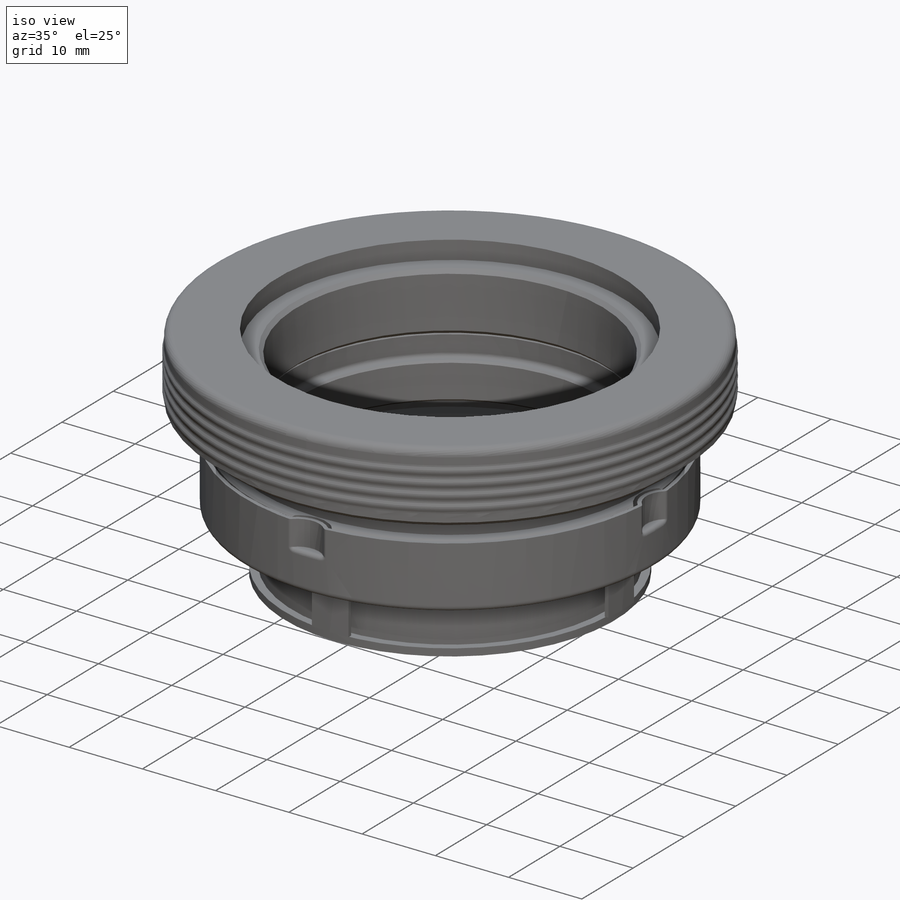
[diagram: iso view]
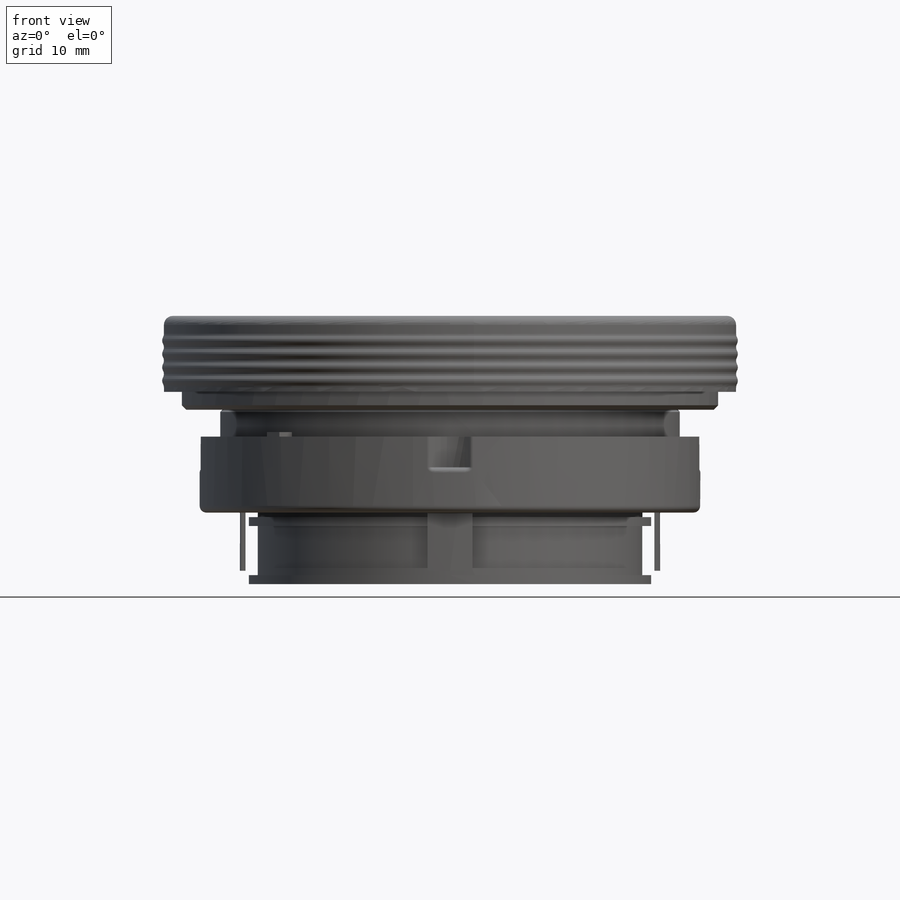
[diagram: front view]
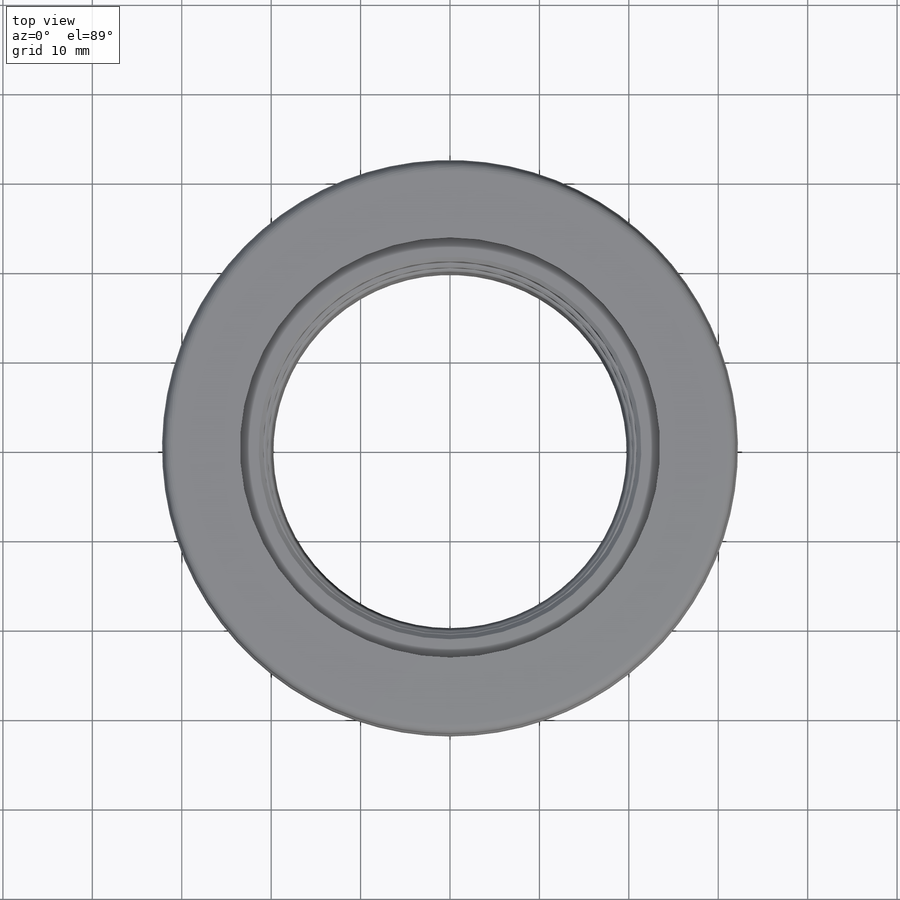
[diagram: top view]
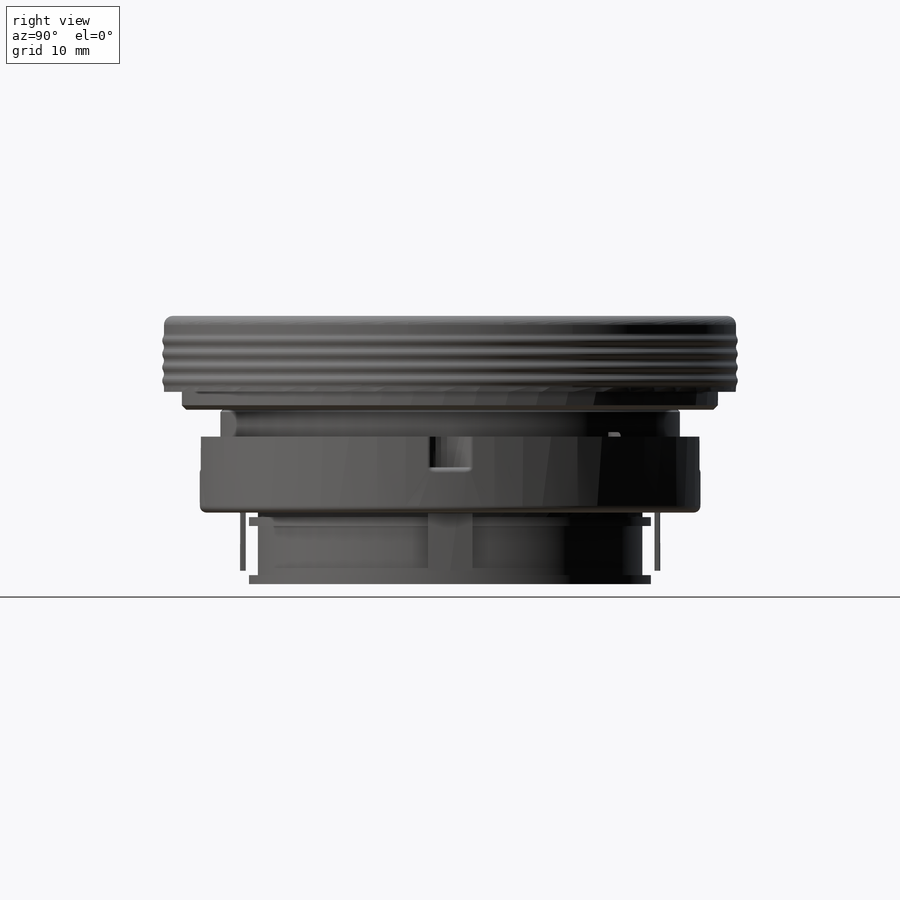
[diagram: right view]
SOLIDWORKS PART (.sldprt)
format: sldprt  version: not decoded by parser v0  size: 1,431,552 bytes
history: native  units: mm
features: sketch x20, revolve x6, cut_extrude x4, extrude x4, sweep x3, material x1, fillet x1, chamfer x1 (+12 scaffold rows collapsed)
feature tree (52):
  scaffold x12  (default folders/planes/origin — collapsed)
  material  "Material <not specified>"
  sketch  "Sketch1"  dims[c1.D2=1.0mm c1.D3=0.75mm c1.D4=0.5mm c1.D6=0.5mm c1.D1=64.0mm c1.D5=8.5mm c2.D6=64.4mm c2.D7=60.0mm c2.D4=2.5mm c2.D8=47.0mm c2.D9=0.5mm]
  revolve  "Revolve1"  Angle=360deg
  sketch  "Sketch2"  dims[c1.D1=8.0mm c1.D2=13.9mm c2.D2=41.8mm]
  revolve  "Revolve2"  Angle=360deg
  sketch  "Sketch3"  dims[c1.D7=0.5mm c1.D1=16.7mm c1.D2=18.65mm c1.D3=8.0mm c1.D4=3.0mm c1.D5=14.2mm c1.D6=13.0mm c2.D2=40.8mm c2.D5=43.0mm c2.D6=51.4mm c2.D8=54.2mm c2.D4=3.0mm]
  revolve  "Revolve3"  Angle=360deg
  sketch  "Sketch4"  dims[c1.D2=~2.940037mm c1.D3=~3.96125mm c1.D1=5.5mm c2.D2=51.7mm c2.D3=51.7mm c3.D2=4.0]
  cut_extrude  "Cut-Extrude1"  [1 undecoded]
  sketch  "Sketch5"  dims[c1.D1=1.0mm c1.D4=~10.15606mm c1.D5=0.5mm c1.D3=38.5mm c2.D4=7.5mm c2.D5=13.5mm c2.D3=38.5mm c2.D1=25.0mm c2.D2=11.5mm c3.D3=1.5mm c3.D4=39.5mm c3.D5=10.0mm c3.D6=5.0mm c3.D7=~5.534851mm c4.D7=80.0deg c4.D8=10.0mm c4.D9=46.5mm c4.D10=53.5mm c4.D11=~0.513672mm c5.D11=43.0mm c5.D12=42.5mm c5.D14=29.5mm c5.D15=6.5mm c5.D16=1.0mm c5.D17=45.0mm c6.D14=5.5mm c6.D15=3.0mm c6.D18=48.5mm c6.D19=2.5mm c7.D19=15.0deg c8.D19=40.0mm c8.D2=0.5mm]
  revolve  "Revolve4"  Angle=360deg
  sketch  "Sketch6"  dims[D1=0.75mm D3=8.5mm D4=15.0mm D5=56.0mm D6=47.0mm D2=0.5mm]
  revolve  "Revolve5"  Angle=360deg
  sketch  "Sketch7"  dims[c1.D1=32.4mm c1.D3=30.0mm c1.D2=5.0mm c1.D4=2.5mm c2.D3=0.5mm c2.D5=4.0]
  cut_extrude  "Cut-Extrude2"  [1 undecoded]
  sketch  "Sketch9"  dims[D1=3.0mm D2=4.0]
  cut_extrude  "Cut-Extrude3"  Depth=4mm
  sketch  "Sketch11"  dims[D1=0.5mm D2=4.0]
  extrude  "Boss-Extrude1"  [1 undecoded]
  sketch  "Sketch12"  dims[D1=0.0mm D2=4.0]
  extrude  "Boss-Extrude2"  Depth=0.5mm
  sketch  "Sketch13"  dims[c1.D1=18.0mm c1.D2=2.0mm c2.D1=2.0mm c2.D2=2.0mm c2.D3=2.0mm c3.D3=45.0deg c3.D1=2.0mm c3.D4=2.0]
  extrude  "Boss-Extrude4"  Depth=0.5mm
  fillet  "Fillet3"  Radius=0.5mm
  sketch  "Sketch14"  dims[c1.D1=33.0mm c1.D2=43.4mm c2.D1=47.5mm c2.D3=6.5mm c2.D4=45.2mm c2.D5=4.0]
  extrude  "Boss-Extrude5"  Depth=5.5mm
  chamfer  "Chamfer1"  Distance=0.25mm Angle=45deg
  sketch  "Sketch15"  dims[c1.D1=3.2mm c1.D2=2.0mm c1.D3=2.0mm c2.D2=2.5mm c2.D3=16.5mm]
  sketch  "Sketch16"  dims[D1=0.5mm]
  sweep  "Sweep1"
  sketch  "Sketch17"  dims[D1=~18.883689mm D2=2.5mm]
  sweep  "Sweep2"
  sketch  "Sketch15<2>"  dims[D1=760.0deg]
  sketch  "Sketch18"  dims[D1=0.0mm]
  sketch  "Sketch19"
  sweep  "Sweep3"
  sketch  "Sketch20"  dims[D1=~22.144955mm]
  cut_extrude  "Cut-Extrude4"  [1 undecoded]
  sketch  "Sketch21"  dims[D1=1.0mm D3=5.0mm D4=57.5mm D5=40.5mm D2=0.5mm]
  revolve  "Revolve6"  Angle=360deg
decode coverage: 31 of 39 modeling features carry decoded parameters
note: ~ marks probable driven/reference dimensions
note: 4 parameter values undecoded
summary: no parameter record found for 4 features
note: suppression state not decoded; provenance and decode notes live in map.json
